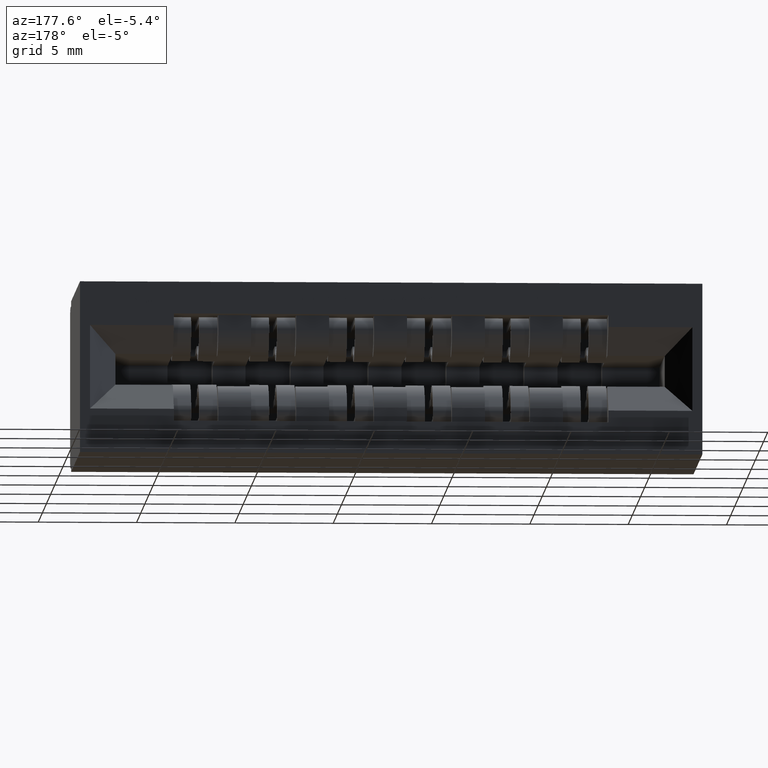
[diagram: clean part render]
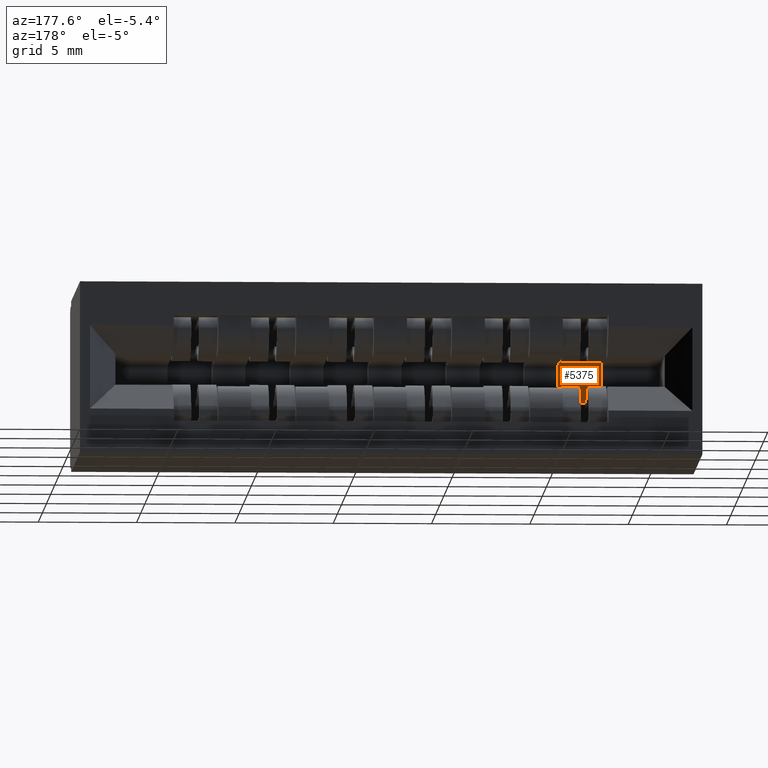
[diagram: same view with one face highlighted and labeled with its STEP entity id]
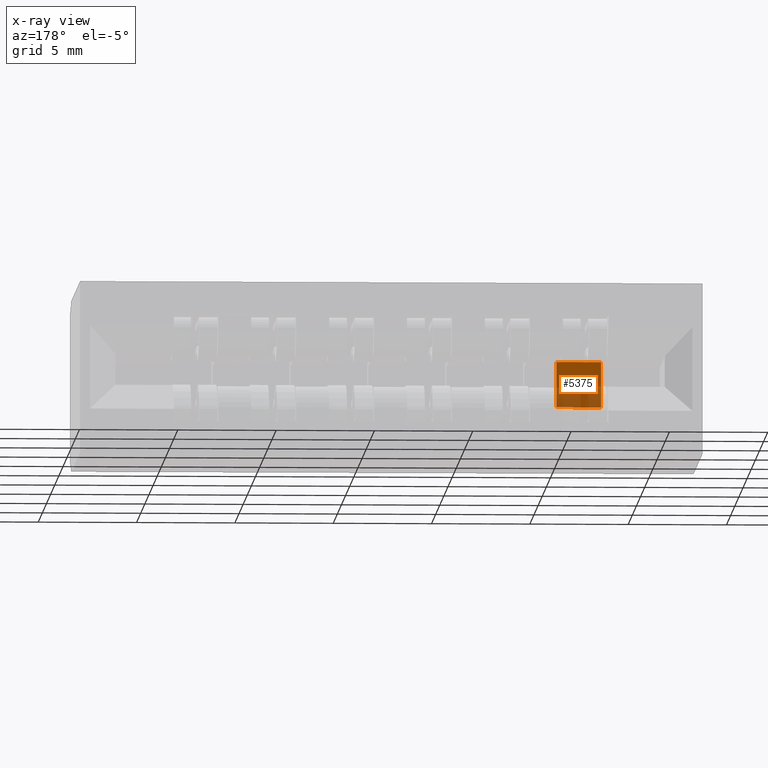
[diagram: x-ray of the same camera — body ghosted, the highlighted face saturated]
A machine part, auxiliary view. The second image highlights one B-rep face of the part: STEP entity #5375.
The next image is the same camera in x-ray: the body ghosted, the highlighted face saturated — about 41% of this face is hidden behind the body in this view.
In plain terms, the highlighted planar face has unit normal (-0, 1, 0).
Its self-contained STEP definition (entity closure, byte-faithful):
#130 = VECTOR ( 'NONE', #4543, 39.37007874015748100 ) ;
#144 = DIRECTION ( 'NONE',  ( -1.000000000000000000, 1.523522968680903000E-013, 8.906229577750066300E-014 ) ) ;
#354 = ORIENTED_EDGE ( 'NONE', *, *, #8547, .F. ) ;
#450 = FACE_OUTER_BOUND ( 'NONE', #4668, .T. ) ;
#996 = CARTESIAN_POINT ( 'NONE',  ( 0.1530000000000000200, 0.01299999999996879300, 0.0000000000000000000 ) ) ;
#1214 = VECTOR ( 'NONE', #6692, 39.37007874015748100 ) ;
#1530 = LINE ( 'NONE', #1935, #5432 ) ;
#1935 = CARTESIAN_POINT ( 'NONE',  ( 0.1530000000000000200, 0.01299999999997381400, -0.08899999999999896900 ) ) ;
#1979 = VERTEX_POINT ( 'NONE', #2497 ) ;
#2497 = CARTESIAN_POINT ( 'NONE',  ( 0.1530000000000000200, 0.01299999999997381400, -0.08899999999999896900 ) ) ;
#2692 = LINE ( 'NONE', #6860, #130 ) ;
#3285 = EDGE_CURVE ( 'NONE', #9937, #5466, #9338, .T. ) ;
#4511 = CARTESIAN_POINT ( 'NONE',  ( 0.06200000000000001300, 0.01299999999997381400, -0.08899999999999896900 ) ) ;
#4543 = DIRECTION ( 'NONE',  ( -8.906229577750046100E-014, 1.031235533802508500E-014, 1.000000000000000000 ) ) ;
#4668 = EDGE_LOOP ( 'NONE', ( #354, #5079, #5901, #9745 ) ) ;
#5055 = VERTEX_POINT ( 'NONE', #996 ) ;
#5079 = ORIENTED_EDGE ( 'NONE', *, *, #9478, .F. ) ;
#5234 = DIRECTION ( 'NONE',  ( 1.523522968680912100E-013, 1.000000000000000000, 1.031235533799796200E-014 ) ) ;
#5258 = EDGE_CURVE ( 'NONE', #1979, #9937, #1530, .T. ) ;
#5375 = ADVANCED_FACE ( 'NONE', ( #450 ), #9184, .T. ) ;
#5432 = VECTOR ( 'NONE', #5761, 39.37007874015748100 ) ;
#5466 = VERTEX_POINT ( 'NONE', #6963 ) ;
#5761 = DIRECTION ( 'NONE',  ( -1.000000000000000000, 1.520708564841276200E-013, 8.906229577750062500E-014 ) ) ;
#5901 = ORIENTED_EDGE ( 'NONE', *, *, #5258, .T. ) ;
#6692 = DIRECTION ( 'NONE',  ( -8.906229577750046100E-014, 1.031235533802508500E-014, 1.000000000000000000 ) ) ;
#6727 = CARTESIAN_POINT ( 'NONE',  ( 0.06200000000000001300, 0.01299999999997381400, -0.08899999999999896900 ) ) ;
#6758 = DIRECTION ( 'NONE',  ( -1.000000000000000000, 1.523522968680903000E-013, 8.906229577750066300E-014 ) ) ;
#6860 = CARTESIAN_POINT ( 'NONE',  ( 0.1530000000000000200, 0.01299999999997381400, -0.08899999999999896900 ) ) ;
#6963 = CARTESIAN_POINT ( 'NONE',  ( 0.06199999999999997900, 0.01299999999996879300, 0.0000000000000000000 ) ) ;
#6966 = VECTOR ( 'NONE', #144, 39.37007874015748100 ) ;
#8547 = EDGE_CURVE ( 'NONE', #5055, #5466, #9637, .T. ) ;
#9074 = CARTESIAN_POINT ( 'NONE',  ( 0.06200000000000001300, 0.01299999999997381400, -0.08899999999999896900 ) ) ;
#9184 = PLANE ( 'NONE',  #10047 ) ;
#9338 = LINE ( 'NONE', #6727, #1214 ) ;
#9450 = CARTESIAN_POINT ( 'NONE',  ( 0.06199999999999997900, 0.01299999999996879300, 0.0000000000000000000 ) ) ;
#9478 = EDGE_CURVE ( 'NONE', #1979, #5055, #2692, .T. ) ;
#9637 = LINE ( 'NONE', #9450, #6966 ) ;
#9745 = ORIENTED_EDGE ( 'NONE', *, *, #3285, .T. ) ;
#9937 = VERTEX_POINT ( 'NONE', #9074 ) ;
#10047 = AXIS2_PLACEMENT_3D ( 'NONE', #4511, #5234, #6758 ) ;